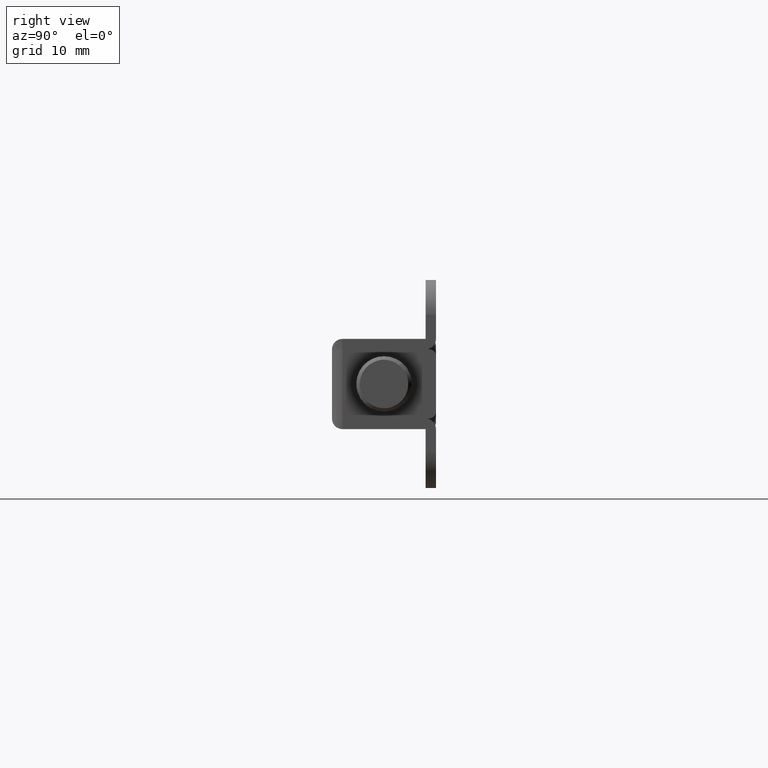
[diagram: clean part render]
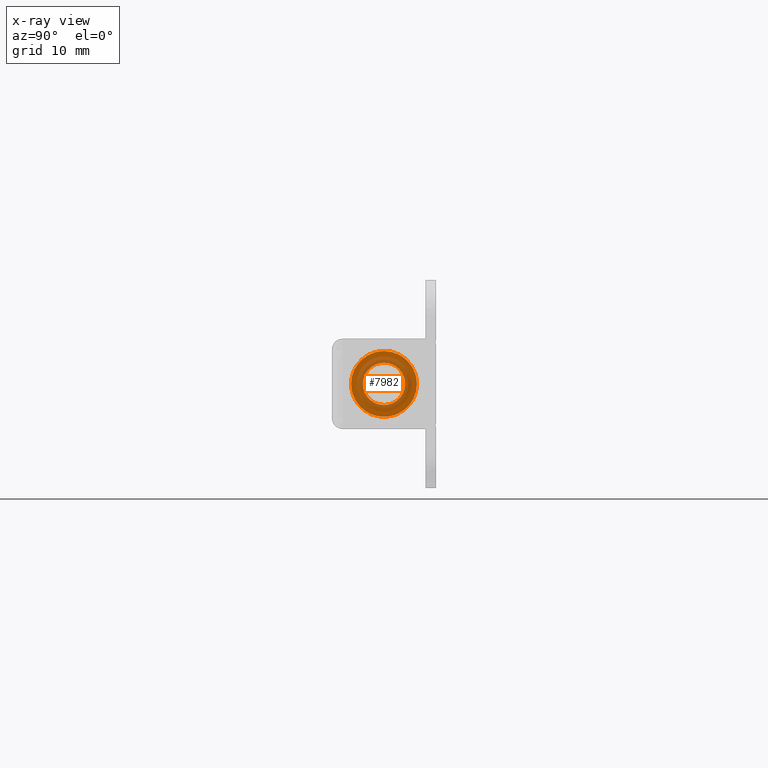
[diagram: x-ray — body ghosted, one internal face saturated and labeled with its STEP entity id]
A machine part, right view, then the same camera in x-ray: the body is ghosted and one INTERNAL B-rep face — a face not visible from any outside direction — is saturated and labeled: STEP entity #7982.
In plain terms, the highlighted face is a freeform B-spline surface patch.
Its self-contained STEP definition (entity closure, byte-faithful):
#7554=CARTESIAN_POINT('',(47.900002000000093,3.626889473579682,-3.067274775714162));
#7555=VERTEX_POINT('',#7554);
#7561=CARTESIAN_POINT('',(47.900002000000093,0.0,-4.750000000000000));
#7562=VERTEX_POINT('',#7561);
#7563=CARTESIAN_POINT('',(47.900002000000093,3.626889473579682,-3.067274775714162));
#7564=CARTESIAN_POINT('',(47.900002000000200,3.390988322598445,-3.346322613839581));
#7565=CARTESIAN_POINT('',(47.900001999999837,2.933256347144622,-3.775519772582384));
#7566=CARTESIAN_POINT('',(47.900002000000313,2.255755039152913,-4.197013137681785));
#7567=CARTESIAN_POINT('',(47.900002000000093,1.627034143433539,-4.478404410104501));
#7568=CARTESIAN_POINT('',(47.900001999999702,0.902728575312648,-4.690685883519821));
#7569=CARTESIAN_POINT('',(47.900002000000313,0.322408746968194,-4.750045309873070));
#7570=CARTESIAN_POINT('',(47.900002000000093,0.0,-4.750000000000000));
#7571=B_SPLINE_CURVE_WITH_KNOTS('',3,(#7563,#7564,#7565,#7566,#7567,#7568,#7569,#7570),.UNSPECIFIED.,.F.,.U.,(4,1,1,1,1,4),(0.000000022718301,1.096192290008544,1.869988563287366,2.385825501276108,3.159612035614801,4.126839513930976),.UNSPECIFIED.);
#7572=EDGE_CURVE('',#7555,#7562,#7571,.T.);
#7574=CARTESIAN_POINT('',(47.900002000000093,-4.749999999999938,0.000000769969486));
#7575=VERTEX_POINT('',#7574);
#7576=CARTESIAN_POINT('',(47.900002000000093,0.0,-4.750000000000000));
#7577=CARTESIAN_POINT('',(47.900002000000370,-0.485797062072512,-4.750260781861955));
#7578=CARTESIAN_POINT('',(47.900001999999901,-1.204557134401576,-4.638708543194170));
#7579=CARTESIAN_POINT('',(47.900002000000171,-2.145242389940226,-4.262455043815082));
#7580=CARTESIAN_POINT('',(47.900002000000079,-2.929016460617905,-3.786220846129335));
#7581=CARTESIAN_POINT('',(47.900002000000192,-3.637947223737764,-3.111275004069652));
#7582=CARTESIAN_POINT('',(47.900002000000150,-4.163012719295600,-2.335650759387104));
#7583=CARTESIAN_POINT('',(47.900002000000320,-4.475326301815888,-1.642563759993699));
#7584=CARTESIAN_POINT('',(47.900001999999937,-4.693002889702552,-0.874341425186288));
#7585=CARTESIAN_POINT('',(47.900002000000192,-4.750057655962784,-0.330316863045216));
#7586=CARTESIAN_POINT('',(47.900002000000093,-4.749999999999938,0.000000769969486));
#7587=B_SPLINE_CURVE_WITH_KNOTS('',3,(#7576,#7577,#7578,#7579,#7580,#7581,#7582,#7583,#7584,#7585,#7586),.UNSPECIFIED.,.F.,.U.,(4,1,1,1,1,1,1,1,4),(0.000000076816750,1.457284604694065,2.156792411634158,3.031169329715414,4.196995485202420,5.071371306030805,5.829168090834743,6.470387115886383,7.461329802630675),.UNSPECIFIED.);
#7588=EDGE_CURVE('',#7562,#7575,#7587,.T.);
#7590=CARTESIAN_POINT('',(47.900002000000093,0.0,4.750000000000000));
#7591=VERTEX_POINT('',#7590);
#7592=CARTESIAN_POINT('',(47.900002000000093,-4.749999999999938,0.000000769969486));
#7593=CARTESIAN_POINT('',(47.900002000000107,-4.750013131344795,0.252589584563572));
#7594=CARTESIAN_POINT('',(47.900002000000057,-4.706508493732172,0.796635454223884));
#7595=CARTESIAN_POINT('',(47.900002000000178,-4.473450584665213,1.703811377124909));
#7596=CARTESIAN_POINT('',(47.900002000000192,-4.050938260263706,2.543171737302157));
#7597=CARTESIAN_POINT('',(47.900001999999752,-3.519055611738838,3.216009664167004));
#7598=CARTESIAN_POINT('',(47.900002000000292,-2.965789600274820,3.736349699900138));
#7599=CARTESIAN_POINT('',(47.900001999999994,-2.287198734247289,4.195855300139455));
#7600=CARTESIAN_POINT('',(47.900002000000143,-1.282270379796138,4.626667605241702));
#7601=CARTESIAN_POINT('',(47.900002000000150,-0.485793587522345,4.750251172091760));
#7602=CARTESIAN_POINT('',(47.900002000000093,0.0,4.750000000000000));
#7603=B_SPLINE_CURVE_WITH_KNOTS('',3,(#7592,#7593,#7594,#7595,#7596,#7597,#7598,#7599,#7600,#7601,#7602),.UNSPECIFIED.,.F.,.U.,(4,1,1,1,1,1,1,1,4),(0.000000077080360,0.757772245663190,1.632161654606353,2.798004957306828,3.555811455577143,4.196994998093417,5.071370716574124,6.004045296385818,7.461328934690187),.UNSPECIFIED.);
#7604=EDGE_CURVE('',#7575,#7591,#7603,.T.);
#7606=CARTESIAN_POINT('',(47.900002000000093,3.269684057099313,3.445528165692306));
#7607=VERTEX_POINT('',#7606);
#7608=CARTESIAN_POINT('',(47.900002000000093,0.0,4.750000000000000));
#7609=CARTESIAN_POINT('',(47.900002000000171,0.356878751169473,4.750072644672756));
#7610=CARTESIAN_POINT('',(47.900002000000057,0.976673184383279,4.679803120697073));
#7611=CARTESIAN_POINT('',(47.900002000000107,1.784787883911724,4.422326789621055));
#7612=CARTESIAN_POINT('',(47.900002000000029,2.543079463991944,4.044132280250920));
#7613=CARTESIAN_POINT('',(47.900002000000221,3.010862122330393,3.691241277327195));
#7614=CARTESIAN_POINT('',(47.900002000000093,3.269684057099313,3.445528165692306));
#7615=B_SPLINE_CURVE_WITH_KNOTS('',3,(#7608,#7609,#7610,#7611,#7612,#7613,#7614),.UNSPECIFIED.,.F.,.U.,(4,1,1,1,4),(0.000000018873292,1.070625097029150,1.859490736946583,2.535682498193385,3.606307576337650),.UNSPECIFIED.);
#7616=EDGE_CURVE('',#7591,#7607,#7615,.T.);
#7706=CARTESIAN_POINT('',(47.900002000000093,4.749999999999938,-0.000000769969560));
#7707=VERTEX_POINT('',#7706);
#7708=CARTESIAN_POINT('',(47.900002000000093,3.269684057099313,3.445528165692306));
#7709=CARTESIAN_POINT('',(47.900001999999994,3.561061733060018,3.169189130304298));
#7710=CARTESIAN_POINT('',(47.900002000000143,3.932145597429649,2.714441708406615));
#7711=CARTESIAN_POINT('',(47.900001999999994,4.386080845327574,1.885348290914364));
#7712=CARTESIAN_POINT('',(47.900002000000313,4.673958380298240,1.044052832080848));
#7713=CARTESIAN_POINT('',(47.900002000000057,4.750050963585127,0.341328333855990));
#7714=CARTESIAN_POINT('',(47.900002000000093,4.749999999999938,-0.000000769969560));
#7715=B_SPLINE_CURVE_WITH_KNOTS('',3,(#7708,#7709,#7710,#7711,#7712,#7713,#7714),.UNSPECIFIED.,.F.,.U.,(4,1,1,1,4),(0.000000022667100,1.204694733893148,1.746817716915578,2.831031561356411,3.855022567307104),.UNSPECIFIED.);
#7716=EDGE_CURVE('',#7607,#7707,#7715,.T.);
#7718=CARTESIAN_POINT('',(47.900002000000093,4.749999999999938,-0.000000769969560));
#7719=CARTESIAN_POINT('',(47.900002000000043,4.750042050279440,-0.312610354738305));
#7720=CARTESIAN_POINT('',(47.900002000000100,4.696650546143516,-0.850977848615702));
#7721=CARTESIAN_POINT('',(47.900002000000072,4.483999420707617,-1.623148787096785));
#7722=CARTESIAN_POINT('',(47.900002000000228,4.155467967077548,-2.354324405147928));
#7723=CARTESIAN_POINT('',(47.900001999999851,3.828786393323422,-2.828605557907115));
#7724=CARTESIAN_POINT('',(47.900002000000093,3.626889473579682,-3.067274775714162));
#7725=B_SPLINE_CURVE_WITH_KNOTS('',3,(#7718,#7719,#7720,#7721,#7722,#7723,#7724),.UNSPECIFIED.,.F.,.U.,(4,1,1,1,4),(0.000000016785326,0.937826512041166,1.615156318952042,2.396664322123869,3.334490817388542),.UNSPECIFIED.);
#7726=EDGE_CURVE('',#7707,#7555,#7725,.T.);
#7812=CARTESIAN_POINT('',(47.900002000000093,2.099481251697879,2.212391693294118));
#7813=VERTEX_POINT('',#7812);
#7819=CARTESIAN_POINT('',(47.900002000000093,0.0,3.050000000000000));
#7820=VERTEX_POINT('',#7819);
#7821=CARTESIAN_POINT('',(47.900002000000093,0.0,3.050000000000000));
#7822=CARTESIAN_POINT('',(47.900002000000157,0.301533868817356,3.050152010943275));
#7823=CARTESIAN_POINT('',(47.900002000000107,0.795916053634932,2.976029675792132));
#7824=CARTESIAN_POINT('',(47.900001999999930,1.512627051435993,2.680196416011970));
#7825=CARTESIAN_POINT('',(47.900002000000242,1.898326709972382,2.403412805602892));
#7826=CARTESIAN_POINT('',(47.900002000000093,2.099481251697879,2.212391693294118));
#7827=B_SPLINE_CURVE_WITH_KNOTS('',3,(#7821,#7822,#7823,#7824,#7825,#7826),.UNSPECIFIED.,.F.,.U.,(4,1,1,4),(0.000000023137935,0.904544519458979,1.483448072909833,2.315629017798939),.UNSPECIFIED.);
#7828=EDGE_CURVE('',#7820,#7813,#7827,.T.);
#7830=CARTESIAN_POINT('',(47.900002000000093,-3.049999999999848,0.000000964739997));
#7831=VERTEX_POINT('',#7830);
#7832=CARTESIAN_POINT('',(47.900002000000093,-3.049999999999848,0.000000964739997));
#7833=CARTESIAN_POINT('',(47.900002000000050,-3.050024008680122,0.199618244823163));
#7834=CARTESIAN_POINT('',(47.900002000000192,-3.008213568487549,0.623809797779046));
#7835=CARTESIAN_POINT('',(47.900001999999951,-2.803569607501645,1.270026315340553));
#7836=CARTESIAN_POINT('',(47.900002000000320,-2.486877599873797,1.798334472727154));
#7837=CARTESIAN_POINT('',(47.900001999999702,-2.111510756774356,2.217567582104859));
#7838=CARTESIAN_POINT('',(47.900002000000853,-1.763038113172700,2.503554466232373));
#7839=CARTESIAN_POINT('',(47.900002000000107,-1.300145844613598,2.777194019856912));
#7840=CARTESIAN_POINT('',(47.900002000000363,-0.723606946030854,2.991488204084908));
#7841=CARTESIAN_POINT('',(47.900001999999930,-0.249532811800944,3.050063737606505));
#7842=CARTESIAN_POINT('',(47.900002000000093,0.0,3.050000000000000));
#7843=B_SPLINE_CURVE_WITH_KNOTS('',3,(#7832,#7833,#7834,#7835,#7836,#7837,#7838,#7839,#7840,#7841,#7842),.UNSPECIFIED.,.F.,.U.,(4,1,1,1,1,1,1,1,4),(0.000000094413768,0.598854241175897,1.272599357621468,2.021190454334861,2.432879913885711,2.956919409980694,3.368636382122736,4.042373498892012,4.790958314029742),.UNSPECIFIED.);
#7844=EDGE_CURVE('',#7831,#7820,#7843,.T.);
#7846=CARTESIAN_POINT('',(47.900002000000093,0.0,-3.050000000000000));
#7847=VERTEX_POINT('',#7846);
#7848=CARTESIAN_POINT('',(47.900002000000093,0.0,-3.050000000000000));
#7849=CARTESIAN_POINT('',(47.900001999999773,-0.336889916110753,-3.050198055629543));
#7850=CARTESIAN_POINT('',(47.900002000001088,-0.885705675804497,-2.958102691993455));
#7851=CARTESIAN_POINT('',(47.900001999998793,-1.556681274883037,-2.645690177383937));
#7852=CARTESIAN_POINT('',(47.900002000001457,-2.031799443411313,-2.297800150812858));
#7853=CARTESIAN_POINT('',(47.900001999998992,-2.486826078508016,-1.814112082185273));
#7854=CARTESIAN_POINT('',(47.900002000000399,-2.825829380456873,-1.224141478780574));
#7855=CARTESIAN_POINT('',(47.900002000000327,-3.014291041890749,-0.573903051295172));
#7856=CARTESIAN_POINT('',(47.900001999999972,-3.050015459983610,-0.187145259468606));
#7857=CARTESIAN_POINT('',(47.900002000000093,-3.049999999999848,0.000000964739997));
#7858=B_SPLINE_CURVE_WITH_KNOTS('',3,(#7848,#7849,#7850,#7851,#7852,#7853,#7854,#7855,#7856,#7857),.UNSPECIFIED.,.F.,.U.,(4,1,1,1,1,1,1,4),(0.000000094079015,1.010592314748406,1.646893343752849,2.208337419371088,2.769771008728208,3.630649858802065,4.229519067053840,4.790959401523383),.UNSPECIFIED.);
#7859=EDGE_CURVE('',#7847,#7831,#7858,.T.);
#7861=CARTESIAN_POINT('',(47.900002000000093,2.328844887390098,-1.969513376772207));
#7862=VERTEX_POINT('',#7861);
#7863=CARTESIAN_POINT('',(47.900002000000093,2.328844887390098,-1.969513376772207));
#7864=CARTESIAN_POINT('',(47.900002000000228,2.115084765188045,-2.222581369497330));
#7865=CARTESIAN_POINT('',(47.900001999999908,1.763717399060812,-2.521726382499709));
#7866=CARTESIAN_POINT('',(47.900002000000271,1.212312122001117,-2.810044430715785));
#7867=CARTESIAN_POINT('',(47.900001999999937,0.690036271466328,-2.994465672510432));
#7868=CARTESIAN_POINT('',(47.900002000000171,0.262234151678865,-3.050082574716450));
#7869=CARTESIAN_POINT('',(47.900002000000093,0.0,-3.050000000000000));
#7870=B_SPLINE_CURVE_WITH_KNOTS('',3,(#7863,#7864,#7865,#7866,#7867,#7868,#7869),.UNSPECIFIED.,.F.,.U.,(4,1,1,1,4),(0.000000031128785,0.993706299285298,1.366321939412062,1.863183225357502,2.649865389916665),.UNSPECIFIED.);
#7871=EDGE_CURVE('',#7862,#7847,#7870,.T.);
#7907=CARTESIAN_POINT('',(47.900002000000093,3.049999999999848,-0.000000964740015));
#7908=VERTEX_POINT('',#7907);
#7909=CARTESIAN_POINT('',(47.900002000000093,3.049999999999848,-0.000000964740015));
#7910=CARTESIAN_POINT('',(47.900002000000093,3.050243007480986,-0.345735948956987));
#7911=CARTESIAN_POINT('',(47.900002000000129,2.927256449057695,-1.059225370161605));
#7912=CARTESIAN_POINT('',(47.900002000000093,2.566746966126537,-1.688705081127481));
#7913=CARTESIAN_POINT('',(47.900002000000093,2.328844887390098,-1.969513376772207));
#7914=B_SPLINE_CURVE_WITH_KNOTS('',3,(#7909,#7910,#7911,#7912,#7913),.UNSPECIFIED.,.F.,.U.,(4,1,4),(0.000000017653833,1.037105542774824,2.141093706708690),.UNSPECIFIED.);
#7915=EDGE_CURVE('',#7908,#7862,#7914,.T.);
#7917=CARTESIAN_POINT('',(47.900002000000093,2.099481251697879,2.212391693294118));
#7918=CARTESIAN_POINT('',(47.900002000000121,2.258482146138886,2.061548177336344));
#7919=CARTESIAN_POINT('',(47.900002000000022,2.568942785806370,1.695737600684886));
#7920=CARTESIAN_POINT('',(47.900002000000079,2.945114109797318,0.953907556298428));
#7921=CARTESIAN_POINT('',(47.900002000000079,3.050238061047630,0.348116950798929));
#7922=CARTESIAN_POINT('',(47.900002000000093,3.049999999999848,-0.000000964740015));
#7923=B_SPLINE_CURVE_WITH_KNOTS('',3,(#7917,#7918,#7919,#7920,#7921,#7922),.UNSPECIFIED.,.F.,.U.,(4,1,1,4),(0.000000025223805,0.657510561990692,1.431045551093739,2.475330715718541),.UNSPECIFIED.);
#7924=EDGE_CURVE('',#7813,#7908,#7923,.T.);
#7961=CARTESIAN_POINT('',(47.900002000000093,5.224524981587088,5.224524981587155));
#7962=CARTESIAN_POINT('',(47.900002000000093,-5.224525236396944,5.224524981587155));
#7963=CARTESIAN_POINT('',(47.900002000000093,5.224524981587088,-5.224525236397012));
#7964=CARTESIAN_POINT('',(47.900002000000093,-5.224525236396944,-5.224525236397012));
#7965=B_SPLINE_SURFACE_WITH_KNOTS('',1,1,((#7961,#7963),(#7962,#7964)),.UNSPECIFIED.,.F.,.F.,.U.,(2,2),(2,2),(0.0,10.449050217984031),(0.0,10.449050217984171),.UNSPECIFIED.);
#7966=ORIENTED_EDGE('',*,*,#7572,.F.);
#7967=ORIENTED_EDGE('',*,*,#7726,.F.);
#7968=ORIENTED_EDGE('',*,*,#7716,.F.);
#7969=ORIENTED_EDGE('',*,*,#7616,.F.);
#7970=ORIENTED_EDGE('',*,*,#7604,.F.);
#7971=ORIENTED_EDGE('',*,*,#7588,.F.);
#7972=EDGE_LOOP('',(#7966,#7967,#7968,#7969,#7970,#7971));
#7973=FACE_OUTER_BOUND('',#7972,.T.);
#7974=ORIENTED_EDGE('',*,*,#7859,.T.);
#7975=ORIENTED_EDGE('',*,*,#7844,.T.);
#7976=ORIENTED_EDGE('',*,*,#7828,.T.);
#7977=ORIENTED_EDGE('',*,*,#7924,.T.);
#7978=ORIENTED_EDGE('',*,*,#7915,.T.);
#7979=ORIENTED_EDGE('',*,*,#7871,.T.);
#7980=EDGE_LOOP('',(#7974,#7975,#7976,#7977,#7978,#7979));
#7981=FACE_BOUND('',#7980,.T.);
#7982=ADVANCED_FACE('',(#7973,#7981),#7965,.T.);